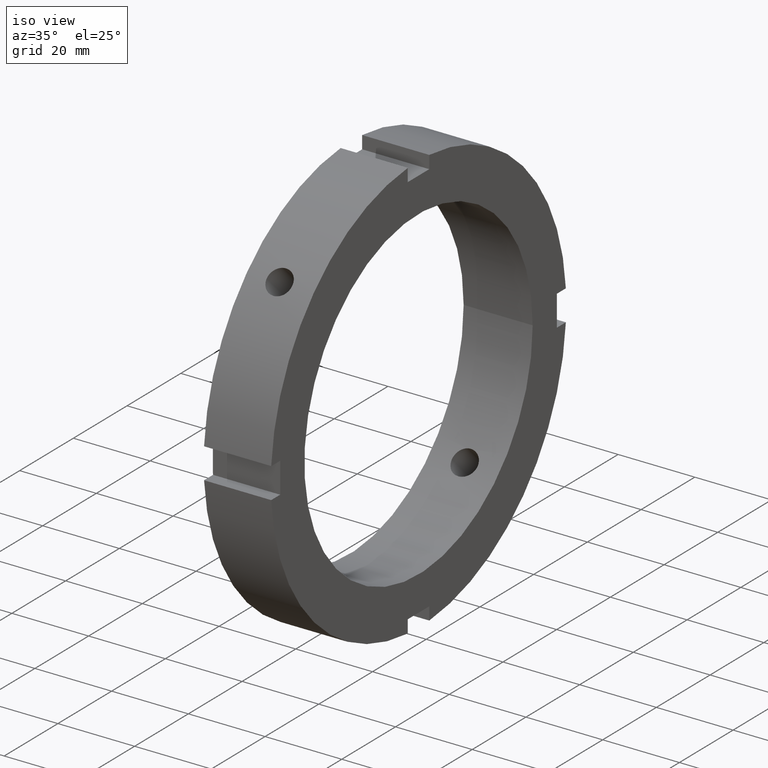
[diagram: clean part render]
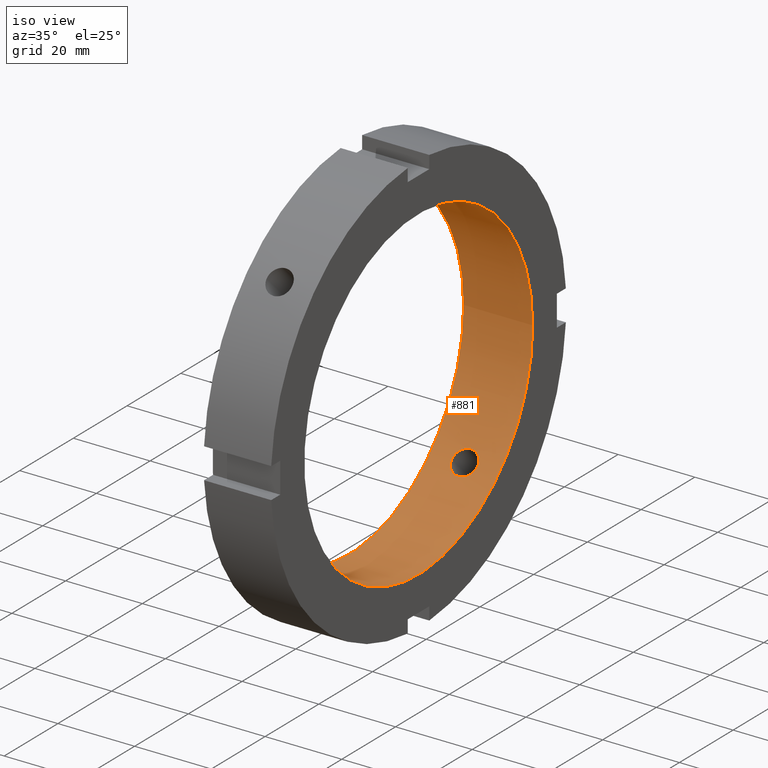
[diagram: same view with one face highlighted and labeled with its STEP entity id]
A machine part, iso view. The second image highlights one B-rep face of the part: STEP entity #881.
In plain terms, the highlighted cylindrical surface (bore or boss wall) has radius 42.5 mm, axis along (1, 0, 0).
Its self-contained STEP definition (entity closure, byte-faithful):
#114=CARTESIAN_POINT('',(8.999999999999993,-32.310078964625092,27.609940190078134));
#115=VERTEX_POINT('',#114);
#116=CARTESIAN_POINT('',(8.999999999999993,-32.310078964625092,27.609940190078120));
#117=CARTESIAN_POINT('',(9.417489243897286,-32.310078964625092,27.609940190078120));
#118=CARTESIAN_POINT('',(9.862689409048569,-32.255869118230393,27.673775083404276));
#119=CARTESIAN_POINT('',(10.681480531253342,-32.033373367372995,27.931020578726230));
#120=CARTESIAN_POINT('',(11.055086003537497,-31.864842397466813,28.124172895512686));
#121=CARTESIAN_POINT('',(11.645052396898857,-31.470776193217645,28.564445166099503));
#122=CARTESIAN_POINT('',(11.900801390972459,-31.218891343055137,28.840918476204944));
#123=CARTESIAN_POINT('',(12.240029902736328,-30.657255451420234,29.437228867962890));
#124=CARTESIAN_POINT('',(12.323499999999994,-30.347247301463128,29.756829099393411));
#125=CARTESIAN_POINT('',(12.323499999999994,-29.756829099393407,30.347247301463138));
#126=CARTESIAN_POINT('',(12.240029902736326,-29.437228867962880,30.657255451420244));
#127=CARTESIAN_POINT('',(11.900801390972449,-28.840918476204934,31.218891343055148));
#128=CARTESIAN_POINT('',(11.645052396898857,-28.564445166099478,31.470776193217667));
#129=CARTESIAN_POINT('',(11.055086003537491,-28.124172895512665,31.864842397466830));
#130=CARTESIAN_POINT('',(10.681480531253333,-27.931020578726226,32.033373367372995));
#131=CARTESIAN_POINT('',(9.862689409048564,-27.673775083404273,32.255869118230393));
#132=CARTESIAN_POINT('',(9.417489243897284,-27.609940190078124,32.310078964625099));
#133=CARTESIAN_POINT('',(8.582510756102703,-27.609940190078124,32.310078964625099));
#134=CARTESIAN_POINT('',(8.137310590951426,-27.673775083404273,32.255869118230393));
#135=CARTESIAN_POINT('',(7.318519468746656,-27.931020578726226,32.033373367372995));
#136=CARTESIAN_POINT('',(6.944913996462496,-28.124172895512665,31.864842397466830));
#137=CARTESIAN_POINT('',(6.354947603101131,-28.564445166099478,31.470776193217667));
#138=CARTESIAN_POINT('',(6.099198609027537,-28.840918476204934,31.218891343055148));
#139=CARTESIAN_POINT('',(5.759970097263660,-29.437228867962880,30.657255451420244));
#140=CARTESIAN_POINT('',(5.676499999999995,-29.756829099393407,30.347247301463138));
#141=CARTESIAN_POINT('',(5.676499999999991,-30.347247301463128,29.756829099393414));
#142=CARTESIAN_POINT('',(5.759970097263658,-30.657255451420234,29.437228867962890));
#143=CARTESIAN_POINT('',(6.099198609027527,-31.218891343055137,28.840918476204944));
#144=CARTESIAN_POINT('',(6.354947603101131,-31.470776193217645,28.564445166099503));
#145=CARTESIAN_POINT('',(6.944913996462492,-31.864842397466813,28.124172895512686));
#146=CARTESIAN_POINT('',(7.318519468746646,-32.033373367372995,27.931020578726230));
#147=CARTESIAN_POINT('',(8.137310590951421,-32.255869118230393,27.673775083404276));
#148=CARTESIAN_POINT('',(8.582510756102700,-32.310078964625092,27.609940190078120));
#149=CARTESIAN_POINT('',(8.999999999999993,-32.310078964625092,27.609940190078120));
#150=B_SPLINE_CURVE_WITH_KNOTS('',3,(#116,#117,#118,#119,#120,#121,#122,#123,#124,#125,#126,#127,#128,#129,#130,#131,#132,#133,#134,#135,#136,#137,#138,#139,#140,#141,#142,#143,#144,#145,#146,#147,#148,#149),.UNSPECIFIED.,.T.,.U.,(4,2,2,2,2,2,2,2,2,2,2,2,2,2,2,2,4),(0.0,0.125246773169188,0.250493546338376,0.375740160664216,0.500986774990057,0.626233389315898,0.751480003641740,0.876726776810927,1.001973549980114,1.127220323149301,1.252467096318489,1.377713710644330,1.502960324970172,1.628206939296012,1.753453553621852,1.878700326791040,2.003947099960228),.UNSPECIFIED.);
#151=EDGE_CURVE('',#115,#115,#150,.T.);
#202=CARTESIAN_POINT('',(8.999999999999993,27.609940190078124,-32.310078964625099));
#203=VERTEX_POINT('',#202);
#204=CARTESIAN_POINT('',(8.999999999999995,27.609940190078110,-32.310078964625099));
#205=CARTESIAN_POINT('',(8.582510756102703,27.609940190078110,-32.310078964625099));
#206=CARTESIAN_POINT('',(8.137310590951426,27.673775083404273,-32.255869118230393));
#207=CARTESIAN_POINT('',(7.318519468746656,27.931020578726226,-32.033373367372995));
#208=CARTESIAN_POINT('',(6.944913996462496,28.124172895512665,-31.864842397466830));
#209=CARTESIAN_POINT('',(6.354947603101131,28.564445166099478,-31.470776193217667));
#210=CARTESIAN_POINT('',(6.099198609027537,28.840918476204934,-31.218891343055148));
#211=CARTESIAN_POINT('',(5.759970097263660,29.437228867962880,-30.657255451420244));
#212=CARTESIAN_POINT('',(5.676499999999995,29.756829099393407,-30.347247301463138));
#213=CARTESIAN_POINT('',(5.676499999999991,30.347247301463128,-29.756829099393414));
#214=CARTESIAN_POINT('',(5.759970097263658,30.657255451420234,-29.437228867962890));
#215=CARTESIAN_POINT('',(6.099198609027527,31.218891343055137,-28.840918476204944));
#216=CARTESIAN_POINT('',(6.354947603101131,31.470776193217645,-28.564445166099503));
#217=CARTESIAN_POINT('',(6.944913996462492,31.864842397466813,-28.124172895512686));
#218=CARTESIAN_POINT('',(7.318519468746645,32.033373367372995,-27.931020578726230));
#219=CARTESIAN_POINT('',(8.137310590951421,32.255869118230393,-27.673775083404276));
#220=CARTESIAN_POINT('',(8.582510756102701,32.310078964625092,-27.609940190078127));
#221=CARTESIAN_POINT('',(9.417489243897288,32.310078964625092,-27.609940190078127));
#222=CARTESIAN_POINT('',(9.862689409048569,32.255869118230393,-27.673775083404276));
#223=CARTESIAN_POINT('',(10.681480531253342,32.033373367372995,-27.931020578726230));
#224=CARTESIAN_POINT('',(11.055086003537497,31.864842397466813,-28.124172895512686));
#225=CARTESIAN_POINT('',(11.645052396898858,31.470776193217645,-28.564445166099503));
#226=CARTESIAN_POINT('',(11.900801390972459,31.218891343055137,-28.840918476204948));
#227=CARTESIAN_POINT('',(12.240029902736328,30.657255451420234,-29.437228867962890));
#228=CARTESIAN_POINT('',(12.323499999999994,30.347247301463128,-29.756829099393414));
#229=CARTESIAN_POINT('',(12.323499999999994,29.756829099393407,-30.347247301463138));
#230=CARTESIAN_POINT('',(12.240029902736326,29.437228867962880,-30.657255451420244));
#231=CARTESIAN_POINT('',(11.900801390972449,28.840918476204934,-31.218891343055148));
#232=CARTESIAN_POINT('',(11.645052396898857,28.564445166099478,-31.470776193217667));
#233=CARTESIAN_POINT('',(11.055086003537491,28.124172895512665,-31.864842397466830));
#234=CARTESIAN_POINT('',(10.681480531253333,27.931020578726226,-32.033373367372995));
#235=CARTESIAN_POINT('',(9.862689409048564,27.673775083404273,-32.255869118230393));
#236=CARTESIAN_POINT('',(9.417489243897283,27.609940190078110,-32.310078964625099));
#237=CARTESIAN_POINT('',(8.999999999999993,27.609940190078110,-32.310078964625099));
#238=B_SPLINE_CURVE_WITH_KNOTS('',3,(#204,#205,#206,#207,#208,#209,#210,#211,#212,#213,#214,#215,#216,#217,#218,#219,#220,#221,#222,#223,#224,#225,#226,#227,#228,#229,#230,#231,#232,#233,#234,#235,#236,#237),.UNSPECIFIED.,.T.,.U.,(4,2,2,2,2,2,2,2,2,2,2,2,2,2,2,2,4),(0.0,0.125246773169187,0.250493546338375,0.375740160664216,0.500986774990058,0.626233389315898,0.751480003641738,0.876726776810926,1.001973549980114,1.127220323149302,1.252467096318490,1.377713710644331,1.502960324970171,1.628206939296012,1.753453553621854,1.878700326791041,2.003947099960228),.UNSPECIFIED.);
#239=EDGE_CURVE('',#203,#203,#238,.T.);
#712=CARTESIAN_POINT('',(17.999999999999993,42.500000000000000,0.0));
#713=VERTEX_POINT('',#712);
#714=CARTESIAN_POINT('',(17.999999999999993,0.0,0.0));
#715=DIRECTION('',(1.0,0.0,0.0));
#716=DIRECTION('',(0.0,1.0,0.0));
#717=AXIS2_PLACEMENT_3D('',#714,#715,#716);
#718=CIRCLE('',#717,42.500000000000000);
#719=EDGE_CURVE('',#713,#713,#718,.T.);
#805=CARTESIAN_POINT('',(-1.211782E-014,42.500000000000000,0.0));
#806=VERTEX_POINT('',#805);
#807=CARTESIAN_POINT('',(-1.211704E-014,0.0,0.0));
#808=DIRECTION('',(1.0,0.0,0.0));
#809=DIRECTION('',(0.0,1.0,0.0));
#810=AXIS2_PLACEMENT_3D('',#807,#808,#809);
#811=CIRCLE('',#810,42.500000000000000);
#812=EDGE_CURVE('',#806,#806,#811,.T.);
#864=CARTESIAN_POINT('',(8.999999999999989,0.0,0.0));
#865=DIRECTION('',(1.0,0.0,0.0));
#866=DIRECTION('',(0.0,1.0,0.0));
#867=AXIS2_PLACEMENT_3D('',#864,#865,#866);
#868=CYLINDRICAL_SURFACE('',#867,42.500000000000000);
#869=ORIENTED_EDGE('',*,*,#812,.F.);
#870=EDGE_LOOP('',(#869));
#871=FACE_OUTER_BOUND('',#870,.T.);
#872=ORIENTED_EDGE('',*,*,#151,.T.);
#873=EDGE_LOOP('',(#872));
#874=FACE_BOUND('',#873,.T.);
#875=ORIENTED_EDGE('',*,*,#239,.T.);
#876=EDGE_LOOP('',(#875));
#877=FACE_BOUND('',#876,.T.);
#878=ORIENTED_EDGE('',*,*,#719,.T.);
#879=EDGE_LOOP('',(#878));
#880=FACE_BOUND('',#879,.T.);
#881=ADVANCED_FACE('',(#871,#874,#877,#880),#868,.F.);